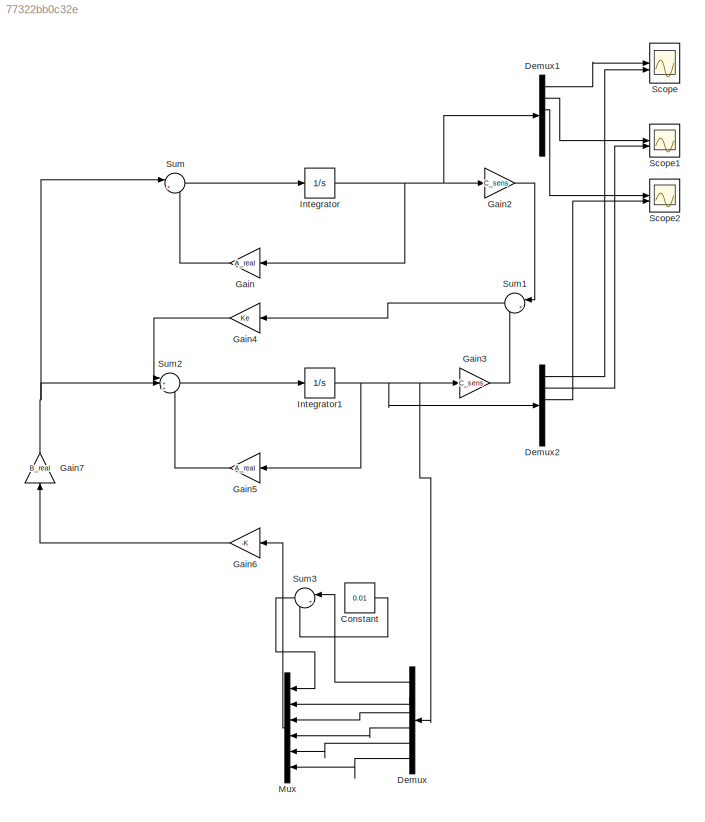
MODEL slx_77322bb0c32e
KIND model
CONFIG AbsTol = auto
CONFIG EnableMultiTasking = off
CONFIG FixedStep = auto
CONFIG MaxStep = auto
CONFIG MinStep = auto
CONFIG RelTol = 1e-3
CONFIG SampleTimeConstraint = Unconstrained
CONFIG SolverName = VariableStepAuto
CONFIG StartTime = 0.0
CONFIG StopTime = 15
BLOCK [Constant] Constant
  Value = 0.01
BLOCK [Demux] Demux
  NameLocation = top
  Outputs = 6
BLOCK [Demux] Demux1
  Outputs = 6
BLOCK [Demux] Demux2
  Outputs = 6
BLOCK [Gain] Gain
  Gain = A_real
  Multiplication = Matrix(K*u)
  NameLocation = top
BLOCK [Gain] Gain2
  Gain = C_sens
  Multiplication = Matrix(K*u)
BLOCK [Gain] Gain3
  Gain = C_sens
  Multiplication = Matrix(K*u)
BLOCK [Gain] Gain4
  Gain = Ke
  Multiplication = Matrix(K*u)
  NameLocation = top
BLOCK [Gain] Gain5
  Gain = A_real
  Multiplication = Matrix(K*u)
  NameLocation = top
BLOCK [Gain] Gain6
  Gain = -K
  Multiplication = Matrix(K*u)
  NameLocation = top
BLOCK [Gain] Gain7
  Gain = B_real
  Multiplication = Matrix(K*u)
  NameLocation = right
BLOCK [Integrator] Integrator
  InitialCondition = [0;0;4*pi/180;0;0;0];
BLOCK [Integrator] Integrator1
  InitialCondition = [0;0;pi/180;0;0;0];
BLOCK [Mux] Mux
  DisplayOption = bar
  Inputs = 6
  NameLocation = top
BLOCK [Scope] Scope
  ActiveDisplayYMaximum = 0.068206793798433973
  ActiveDisplayYMinimum = -0.075417018476501479
  Floating = off
  GraphicalSettings = {"AxesScalingProperties":{"AlignXAxis":"Center","AlignYAxis":"Center","AutoScaleXAxisLimits":false,"AxesScaling":"Manual","AxesScalingNumUpdates":10,"ExpandOnly":true,"ScaleAxesLimitsAtStop":false,"XAxisDataRange":100,"YAxisDataRange":80},"DisplayProperties":{"ColorOrder":["auto","auto","auto","auto","auto","auto","auto","auto","auto","auto","auto","auto","auto","auto","auto","auto","auto","auto",...<+2135ch>
  MultipleDisplayCache = [{"MaxYLimMag":0.29930715574382666,"MaxYLimReal":0.068206793798433973,"MinYLimMag":0,"MinYLimReal":-0.075417018476501479,"PlotAsMagnitudePhase":false,"ShowGrid":true,"ShowLegend":false,"Title":"%<SignalLabel>","YLabel":""}]
  NumInputPorts = 2
  ScopeFrameLocation = window
  WasSavedAsWebScope = on
  WindowPosition = [680.000000,441.000000,560.000000,420.000000,]
BLOCK [Scope] Scope1
  ActiveDisplayYMaximum = 1.0826969513748308
  ActiveDisplayYMinimum = 0.23085704540244195
  DataLoggingVariableName = ScopeData1
  Floating = off
  GraphicalSettings = {"AxesScalingProperties":{"AlignXAxis":"Center","AlignYAxis":"Center","AutoScaleXAxisLimits":false,"AxesScaling":"Manual","AxesScalingNumUpdates":10,"ExpandOnly":true,"ScaleAxesLimitsAtStop":false,"XAxisDataRange":100,"YAxisDataRange":80},"DisplayProperties":{"ColorOrder":["auto","auto","auto","auto","auto","auto","auto","auto","auto","auto","auto","auto","auto","auto","auto","auto","auto","auto",...<+2131ch>
  MultipleDisplayCache = [{"MaxYLimMag":1.1615300766941705,"MaxYLimReal":1.0826969513748308,"MinYLimMag":0,"MinYLimReal":0.23085704540244195,"PlotAsMagnitudePhase":false,"ShowGrid":true,"ShowLegend":false,"Title":"%<SignalLabel>","YLabel":""}]
  NumInputPorts = 2
  ScopeFrameLocation = window
  WasSavedAsWebScope = on
  WindowPosition = [81.000000,30.000000,1850.000000,1016.000000,]
BLOCK [Scope] Scope2
  ActiveDisplayYMaximum = 0.099158365022268713
  ActiveDisplayYMinimum = -0.025283783657004927
  DataLoggingVariableName = ScopeData2
  Floating = off
  GraphicalSettings = {"Style":{"BackgroundColor":[0.12941176470588237,0.12941176470588237,0.12941176470588237],"AxesColor":[0.07058823529411765,0.07058823529411765,0.07058823529411765],"LabelsColor":[0.8509803921568627,0.8509803921568627,0.8509803921568627],"PreserveColors":false,"Visible":[true,true],"LineStyle":["-","-"],"LineWidth":[1.5,1.5],"BarWidth":[0.9,0.9],"LineColor":["auto","auto"],"LineFaceAlpha":[1,1],"Li...<+2321ch>
  MultipleDisplayCache = [{"MaxYLimMag":0.71013075339221865,"MaxYLimReal":0.099158365022268713,"MinYLimMag":0,"MinYLimReal":-0.025283783657004927,"PlotAsMagnitudePhase":false,"ShowGrid":true,"ShowLegend":true,"Title":"%<SignalLabel>","YLabel":""}]
  NumInputPorts = 2
  ScopeFrameLocation = window
  ShowLegend = on
  WasSavedAsWebScope = on
  WindowPosition = [302.000000,252.000000,1387.000000,752.000000,]
BLOCK [Sum] Sum
  Inputs = |++
BLOCK [Sum] Sum1
  Inputs = |+-
  NameLocation = top
BLOCK [Sum] Sum2
  Inputs = |+++
BLOCK [Sum] Sum3
  Inputs = |+-
  NameLocation = top
LINE Constant:1 -> Sum3:2
LINE Demux1:1 -> Scope:1
LINE Demux1:2 -> Scope1:1
LINE Demux1:3 -> Scope2:1
LINE Demux2:1 -> Scope:2
LINE Demux2:2 -> Scope1:2
LINE Demux2:3 -> Scope2:2
LINE Demux:1 -> Sum3:1
LINE Demux:2 -> Mux:2
LINE Demux:3 -> Mux:3
LINE Demux:4 -> Mux:4
LINE Demux:5 -> Mux:5
LINE Demux:6 -> Mux:6
LINE Gain2:1 -> Sum1:1
LINE Gain3:1 -> Sum1:2
LINE Gain4:1 -> Sum2:1
LINE Gain5:1 -> Sum2:3
LINE Gain6:1 -> Gain7:1
NET Gain7:1 -> Sum2:2, Sum:1
LINE Gain:1 -> Sum:2
NET Integrator1:1 -> Demux2:1, Demux:1, Gain3:1, Gain5:1
NET Integrator:1 -> Demux1:1, Gain2:1, Gain:1
LINE Mux:1 -> Gain6:1
LINE Sum1:1 -> Gain4:1
LINE Sum2:1 -> Integrator1:1
LINE Sum3:1 -> Mux:1
LINE Sum:1 -> Integrator:1
note: NET lines group one-source signal fan-out (src -> all destinations, sorted); 1:1 wires keep LINE
